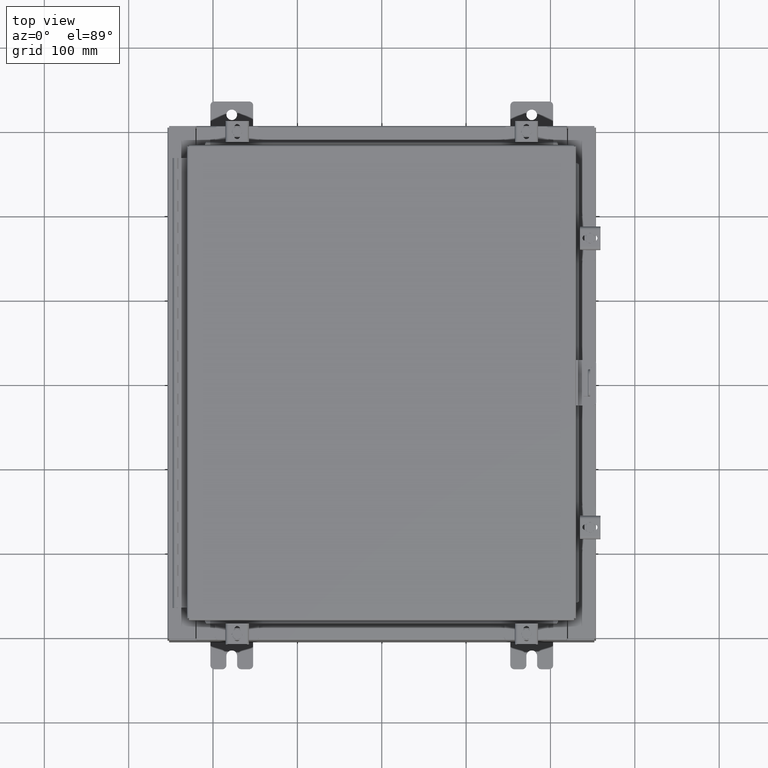
[diagram: clean part render]
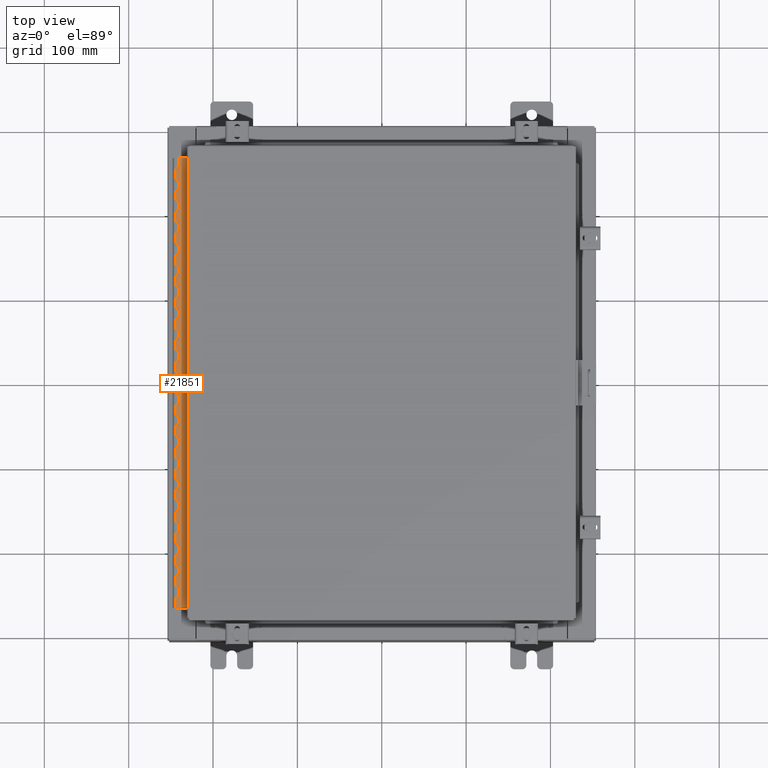
[diagram: same view with one face highlighted and labeled with its STEP entity id]
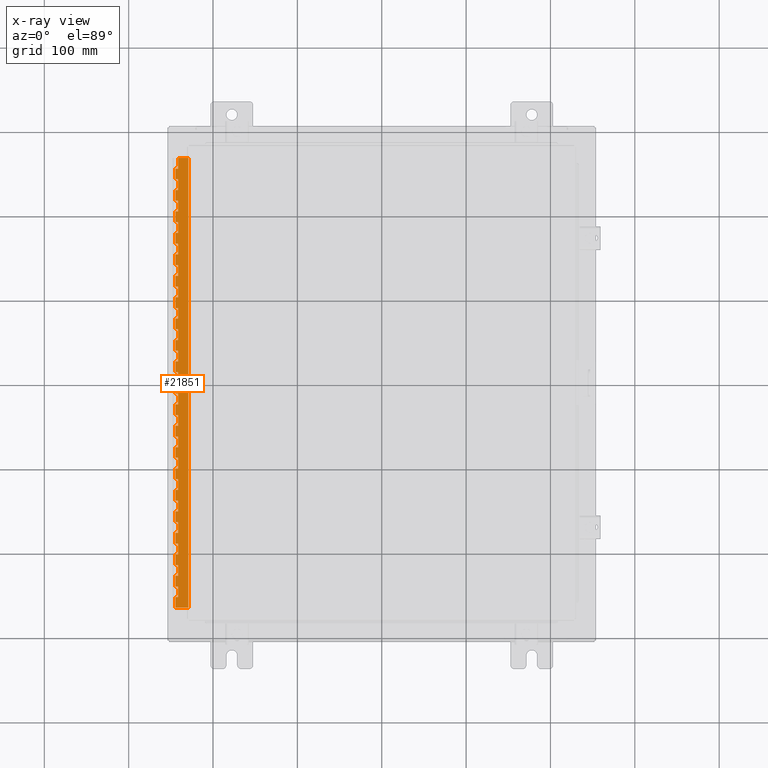
[diagram: x-ray of the same camera — body ghosted, the highlighted face saturated]
A machine part, top view. The second image highlights one B-rep face of the part: STEP entity #21851.
The next image is the same camera in x-ray: the body ghosted, the highlighted face saturated — about 0% of this face is hidden behind the body in this view.
In plain terms, the highlighted planar face has unit normal (-0, -0, 1).
Its self-contained STEP definition (entity closure, byte-faithful):
#10 = DIRECTION ( 'NONE',  ( 0.0000000000000000000, -0.0000000000000000000, -1.000000000000000000 ) ) ;
#110 = EDGE_LOOP ( 'NONE', ( #7374, #1227, #17751, #26213, #26139, #27694, #26069, #1134, #31613, #27124, #5864, #29014, #32197, #27745, #9833, #11457, #7352, #14745, #22190, #7203, #8964, #26904, #8284, #20350, #24306, #19693, #28124, #31014, #13934, #1066, #15916, #15917, #14273, #10133, #2960, #21213, #27392, #32095, #26765, #1829, #12618, #974, #14002, #23756, #30803, #26412, #29730, #24157, #28252, #1879, #6610, #32201, #8877, #13783, #570, #26147, #30787, #4504, #20109, #30104, #16271, #8625, #16395, #1882, #19258, #9254, #14951, #7604, #19823, #5283, #10772, #492, #5381, #12313, #15677, #4214, #22268, #32173, #17090, #22784, #27208, #228, #18981, #30369, #25976, #11629 ) ) ;
#144 = VERTEX_POINT ( 'NONE', #22469 ) ;
#167 = EDGE_CURVE ( 'NONE', #3867, #9009, #17802, .T. ) ;
#197 = VERTEX_POINT ( 'NONE', #25314 ) ;
#220 = EDGE_CURVE ( 'NONE', #9017, #28110, #28810, .T. ) ;
#228 = ORIENTED_EDGE ( 'NONE', *, *, #17876, .F. ) ;
#319 = CARTESIAN_POINT ( 'NONE',  ( -0.6869999999999973900, 0.8004999999999995500, -1.499999999999999800 ) ) ;
#446 = CARTESIAN_POINT ( 'NONE',  ( -0.6869999999999982800, 0.5504999999999997700, -15.50000000000000000 ) ) ;
#492 = ORIENTED_EDGE ( 'NONE', *, *, #26580, .F. ) ;
#498 = CARTESIAN_POINT ( 'NONE',  ( -0.6869999999999982800, 0.5504999999999997700, -20.50000000000000400 ) ) ;
#567 = DIRECTION ( 'NONE',  ( 0.0000000000000000000, -0.0000000000000000000, -1.000000000000000000 ) ) ;
#570 = ORIENTED_EDGE ( 'NONE', *, *, #1113, .F. ) ;
#618 = VECTOR ( 'NONE', #21244, 39.37007874015748100 ) ;
#786 = EDGE_CURVE ( 'NONE', #2374, #25137, #7176, .T. ) ;
#793 = EDGE_CURVE ( 'NONE', #18386, #22180, #6392, .T. ) ;
#811 = VERTEX_POINT ( 'NONE', #22641 ) ;
#840 = LINE ( 'NONE', #8329, #20042 ) ;
#923 = LINE ( 'NONE', #22798, #26032 ) ;
#925 = CARTESIAN_POINT ( 'NONE',  ( -0.6869999999999978300, 0.6754999999999996600, -18.50000000000000000 ) ) ;
#940 = LINE ( 'NONE', #4158, #6814 ) ;
#974 = ORIENTED_EDGE ( 'NONE', *, *, #9707, .F. ) ;
#1066 = ORIENTED_EDGE ( 'NONE', *, *, #20904, .F. ) ;
#1099 = CARTESIAN_POINT ( 'NONE',  ( -0.6869999999999978300, 0.6754999999999996600, -12.49999999999999800 ) ) ;
#1113 = EDGE_CURVE ( 'NONE', #13730, #9017, #30310, .T. ) ;
#1127 = CARTESIAN_POINT ( 'NONE',  ( -0.6869999999999973900, 0.8004999999999995500, -17.50000000000000000 ) ) ;
#1134 = ORIENTED_EDGE ( 'NONE', *, *, #22393, .F. ) ;
#1172 = VECTOR ( 'NONE', #4315, 39.37007874015748100 ) ;
#1227 = ORIENTED_EDGE ( 'NONE', *, *, #25290, .T. ) ;
#1246 = CARTESIAN_POINT ( 'NONE',  ( -0.6869999999999982800, 0.5504999999999997700, -16.00000000000000000 ) ) ;
#1334 = DIRECTION ( 'NONE',  ( 3.389037039080723100E-015, 1.000000000000000000, -0.0000000000000000000 ) ) ;
#1380 = CARTESIAN_POINT ( 'NONE',  ( -0.6869999999999978300, 0.6754999999999996600, -5.500000000000000000 ) ) ;
#1560 = VERTEX_POINT ( 'NONE', #14579 ) ;
#1594 = EDGE_CURVE ( 'NONE', #27441, #811, #19279, .T. ) ;
#1647 = CARTESIAN_POINT ( 'NONE',  ( -0.6869999999999978300, 0.6754999999999996600, -16.00000000000000000 ) ) ;
#1654 = EDGE_CURVE ( 'NONE', #18799, #26732, #10270, .T. ) ;
#1657 = VECTOR ( 'NONE', #7236, 39.37007874015748100 ) ;
#1748 = VECTOR ( 'NONE', #8925, 39.37007874015748100 ) ;
#1829 = ORIENTED_EDGE ( 'NONE', *, *, #31227, .F. ) ;
#1831 = EDGE_CURVE ( 'NONE', #197, #21979, #4750, .T. ) ;
#1879 = ORIENTED_EDGE ( 'NONE', *, *, #32073, .F. ) ;
#1882 = ORIENTED_EDGE ( 'NONE', *, *, #15146, .F. ) ;
#1956 = VERTEX_POINT ( 'NONE', #31430 ) ;
#2018 = CARTESIAN_POINT ( 'NONE',  ( -0.6869999999999978300, 0.6754999999999996600, -2.500000000000000000 ) ) ;
#2094 = CARTESIAN_POINT ( 'NONE',  ( -0.6870000000000022800, -0.6245000000000003900, -21.00000000000000000 ) ) ;
#2153 = CARTESIAN_POINT ( 'NONE',  ( -0.6869999999999978300, 0.6754999999999996600, -9.000000000000000000 ) ) ;
#2205 = VECTOR ( 'NONE', #14014, 39.37007874015748100 ) ;
#2240 = DIRECTION ( 'NONE',  ( 0.0000000000000000000, 0.0000000000000000000, 1.000000000000000000 ) ) ;
#2264 = LINE ( 'NONE', #6340, #21494 ) ;
#2305 = EDGE_CURVE ( 'NONE', #13417, #6780, #18054, .T. ) ;
#2374 = VERTEX_POINT ( 'NONE', #10586 ) ;
#2448 = VECTOR ( 'NONE', #21318, 39.37007874015748100 ) ;
#2581 = DIRECTION ( 'NONE',  ( 3.389037039080723100E-015, 1.000000000000000000, -0.0000000000000000000 ) ) ;
#2635 = VECTOR ( 'NONE', #28183, 39.37007874015748100 ) ;
#2651 = EDGE_CURVE ( 'NONE', #30910, #10146, #16090, .T. ) ;
#2700 = EDGE_CURVE ( 'NONE', #21152, #13354, #9402, .T. ) ;
#2704 = DIRECTION ( 'NONE',  ( 3.389037039080723100E-015, 1.000000000000000000, -0.0000000000000000000 ) ) ;
#2791 = CARTESIAN_POINT ( 'NONE',  ( -0.6869999999999978300, 0.6754999999999996600, -20.50000000000000400 ) ) ;
#2856 = EDGE_CURVE ( 'NONE', #30973, #27033, #3907, .T. ) ;
#2960 = ORIENTED_EDGE ( 'NONE', *, *, #24433, .F. ) ;
#2963 = VECTOR ( 'NONE', #4521, 39.37007874015748100 ) ;
#3065 = VERTEX_POINT ( 'NONE', #2791 ) ;
#3114 = VECTOR ( 'NONE', #24909, 39.37007874015748100 ) ;
#3140 = AXIS2_PLACEMENT_3D ( 'NONE', #2094, #19626, #4615 ) ;
#3284 = DIRECTION ( 'NONE',  ( 3.389037039080723100E-015, 1.000000000000000000, -0.0000000000000000000 ) ) ;
#3310 = CARTESIAN_POINT ( 'NONE',  ( -0.6869999999999978300, 0.6754999999999996600, -9.500000000000000000 ) ) ;
#3311 = DIRECTION ( 'NONE',  ( 0.0000000000000000000, -0.0000000000000000000, -1.000000000000000000 ) ) ;
#3412 = DIRECTION ( 'NONE',  ( 0.0000000000000000000, 0.0000000000000000000, 1.000000000000000000 ) ) ;
#3493 = DIRECTION ( 'NONE',  ( -3.389037039080723100E-015, -1.000000000000000000, 0.0000000000000000000 ) ) ;
#3623 = VECTOR ( 'NONE', #15088, 39.37007874015748100 ) ;
#3766 = EDGE_CURVE ( 'NONE', #31857, #27600, #13094, .T. ) ;
#3774 = CARTESIAN_POINT ( 'NONE',  ( -0.6869999999999978300, 0.6754999999999996600, -4.000000000000000000 ) ) ;
#3793 = VECTOR ( 'NONE', #13679, 39.37007874015748100 ) ;
#3819 = EDGE_CURVE ( 'NONE', #20007, #26262, #29970, .T. ) ;
#3846 = VERTEX_POINT ( 'NONE', #13820 ) ;
#3867 = VERTEX_POINT ( 'NONE', #3947 ) ;
#3883 = LINE ( 'NONE', #24571, #15646 ) ;
#3889 = VERTEX_POINT ( 'NONE', #6465 ) ;
#3907 = LINE ( 'NONE', #9989, #29804 ) ;
#3923 = CARTESIAN_POINT ( 'NONE',  ( -0.6869999999999973900, 0.8004999999999995500, -5.500000000000000000 ) ) ;
#3947 = CARTESIAN_POINT ( 'NONE',  ( -0.6869999999999978300, 0.6754999999999996600, -11.50000000000000000 ) ) ;
#3948 = EDGE_CURVE ( 'NONE', #14019, #5814, #940, .T. ) ;
#3990 = CARTESIAN_POINT ( 'NONE',  ( -0.6869999999999978300, 0.6754999999999996600, -6.000000000000000900 ) ) ;
#4020 = CARTESIAN_POINT ( 'NONE',  ( -0.6869999999999978300, 0.6754999999999996600, -8.000000000000000000 ) ) ;
#4042 = CARTESIAN_POINT ( 'NONE',  ( -0.6869999999999982800, 0.5504999999999997700, -11.00000000000000000 ) ) ;
#4117 = LINE ( 'NONE', #24265, #10793 ) ;
#4158 = CARTESIAN_POINT ( 'NONE',  ( -0.6869999999999978300, 0.6754999999999996600, -21.00000000000000000 ) ) ;
#4204 = DIRECTION ( 'NONE',  ( 0.0000000000000000000, 0.0000000000000000000, 1.000000000000000000 ) ) ;
#4214 = ORIENTED_EDGE ( 'NONE', *, *, #7300, .F. ) ;
#4236 = EDGE_CURVE ( 'NONE', #19250, #20865, #17375, .T. ) ;
#4315 = DIRECTION ( 'NONE',  ( -3.389037039080723100E-015, -1.000000000000000000, 0.0000000000000000000 ) ) ;
#4362 = VERTEX_POINT ( 'NONE', #23327 ) ;
#4404 = LINE ( 'NONE', #12561, #3623 ) ;
#4412 = VECTOR ( 'NONE', #28784, 39.37007874015748100 ) ;
#4472 = VERTEX_POINT ( 'NONE', #925 ) ;
#4482 = VECTOR ( 'NONE', #8195, 39.37007874015748100 ) ;
#4504 = ORIENTED_EDGE ( 'NONE', *, *, #25662, .F. ) ;
#4521 = DIRECTION ( 'NONE',  ( 0.0000000000000000000, 0.0000000000000000000, 1.000000000000000000 ) ) ;
#4561 = CARTESIAN_POINT ( 'NONE',  ( -0.6869999999999982800, 0.5504999999999997700, -15.50000000000000000 ) ) ;
#4572 = LINE ( 'NONE', #23780, #3793 ) ;
#4615 = DIRECTION ( 'NONE',  ( 3.369016658928398200E-015, 1.000000000000000000, 0.0000000000000000000 ) ) ;
#4645 = VERTEX_POINT ( 'NONE', #14174 ) ;
#4711 = CARTESIAN_POINT ( 'NONE',  ( -0.6869999999999982800, 0.5504999999999997700, -2.000000000000000000 ) ) ;
#4750 = LINE ( 'NONE', #21022, #17300 ) ;
#4814 = EDGE_CURVE ( 'NONE', #4472, #13671, #9107, .T. ) ;
#4953 = EDGE_CURVE ( 'NONE', #8978, #6625, #11061, .T. ) ;
#4982 = CARTESIAN_POINT ( 'NONE',  ( -0.6869999999999982800, 0.5504999999999997700, -3.500000000000000000 ) ) ;
#5059 = CARTESIAN_POINT ( 'NONE',  ( -0.6869999999999982800, 0.5504999999999997700, -6.499999999999999100 ) ) ;
#5248 = CARTESIAN_POINT ( 'NONE',  ( -0.6869999999999973900, 0.8004999999999995500, -8.000000000000000000 ) ) ;
#5283 = ORIENTED_EDGE ( 'NONE', *, *, #12782, .F. ) ;
#5284 = CARTESIAN_POINT ( 'NONE',  ( -0.6869999999999978300, 0.6754999999999996600, -19.50000000000000000 ) ) ;
#5381 = ORIENTED_EDGE ( 'NONE', *, *, #26248, .T. ) ;
#5417 = VERTEX_POINT ( 'NONE', #2153 ) ;
#5512 = DIRECTION ( 'NONE',  ( 0.0000000000000000000, 0.0000000000000000000, 1.000000000000000000 ) ) ;
#5541 = VECTOR ( 'NONE', #567, 39.37007874015748100 ) ;
#5565 = CARTESIAN_POINT ( 'NONE',  ( -0.6869999999999982800, 0.5504999999999997700, -6.499999999999999100 ) ) ;
#5580 = CARTESIAN_POINT ( 'NONE',  ( -0.6869999999999978300, 0.6754999999999996600, -14.00000000000000000 ) ) ;
#5613 = DIRECTION ( 'NONE',  ( 0.0000000000000000000, -0.0000000000000000000, -1.000000000000000000 ) ) ;
#5814 = VERTEX_POINT ( 'NONE', #13117 ) ;
#5864 = ORIENTED_EDGE ( 'NONE', *, *, #31521, .F. ) ;
#5879 = LINE ( 'NONE', #17801, #18415 ) ;
#5943 = CARTESIAN_POINT ( 'NONE',  ( -0.6869999999999978300, 0.6754999999999996600, -21.00000000000000000 ) ) ;
#5997 = DIRECTION ( 'NONE',  ( 0.0000000000000000000, 0.0000000000000000000, 1.000000000000000000 ) ) ;
#6047 = VERTEX_POINT ( 'NONE', #1380 ) ;
#6074 = EDGE_CURVE ( 'NONE', #19250, #18003, #20397, .T. ) ;
#6099 = LINE ( 'NONE', #9941, #31958 ) ;
#6121 = VECTOR ( 'NONE', #21187, 39.37007874015748100 ) ;
#6221 = CARTESIAN_POINT ( 'NONE',  ( -0.6869999999999978300, 0.6754999999999996600, -21.00000000000000000 ) ) ;
#6254 = CARTESIAN_POINT ( 'NONE',  ( -0.6869999999999982800, 0.5504999999999997700, -1.499999999999999800 ) ) ;
#6340 = CARTESIAN_POINT ( 'NONE',  ( -0.6869999999999973900, 0.8004999999999995500, -19.00000000000000000 ) ) ;
#6387 = VECTOR ( 'NONE', #13615, 39.37007874015748100 ) ;
#6392 = LINE ( 'NONE', #17596, #32261 ) ;
#6406 = EDGE_CURVE ( 'NONE', #20007, #26732, #5879, .T. ) ;
#6465 = CARTESIAN_POINT ( 'NONE',  ( -0.6869999999999982800, 0.5504999999999997700, -14.00000000000000000 ) ) ;
#6469 = VECTOR ( 'NONE', #18260, 39.37007874015748100 ) ;
#6524 = LINE ( 'NONE', #24645, #25752 ) ;
#6610 = ORIENTED_EDGE ( 'NONE', *, *, #8837, .F. ) ;
#6625 = VERTEX_POINT ( 'NONE', #1246 ) ;
#6659 = CARTESIAN_POINT ( 'NONE',  ( -0.6869999999999982800, 0.5504999999999997700, -12.49999999999999800 ) ) ;
#6660 = VERTEX_POINT ( 'NONE', #21507 ) ;
#6705 = CARTESIAN_POINT ( 'NONE',  ( -0.6869999999999982800, 0.5504999999999997700, -0.5000000000000000000 ) ) ;
#6757 = DIRECTION ( 'NONE',  ( 0.0000000000000000000, -0.0000000000000000000, -1.000000000000000000 ) ) ;
#6780 = VERTEX_POINT ( 'NONE', #31898 ) ;
#6814 = VECTOR ( 'NONE', #31657, 39.37007874015748100 ) ;
#6936 = CARTESIAN_POINT ( 'NONE',  ( -0.6869999999999978300, 0.6754999999999996600, -14.49999999999999800 ) ) ;
#6957 = VERTEX_POINT ( 'NONE', #20175 ) ;
#7032 = PLANE ( 'NONE',  #3140 ) ;
#7113 = DIRECTION ( 'NONE',  ( 0.0000000000000000000, 0.0000000000000000000, 1.000000000000000000 ) ) ;
#7176 = LINE ( 'NONE', #4982, #27182 ) ;
#7203 = ORIENTED_EDGE ( 'NONE', *, *, #14576, .F. ) ;
#7236 = DIRECTION ( 'NONE',  ( -3.389037039080723100E-015, -1.000000000000000000, 0.0000000000000000000 ) ) ;
#7300 = EDGE_CURVE ( 'NONE', #30910, #31399, #18356, .T. ) ;
#7352 = ORIENTED_EDGE ( 'NONE', *, *, #22013, .T. ) ;
#7374 = ORIENTED_EDGE ( 'NONE', *, *, #15329, .F. ) ;
#7468 = VERTEX_POINT ( 'NONE', #11092 ) ;
#7469 = CARTESIAN_POINT ( 'NONE',  ( -0.6869999999999978300, 0.6754999999999996600, -2.999999999999999600 ) ) ;
#7549 = CARTESIAN_POINT ( 'NONE',  ( -0.6869999999999978300, 0.6754999999999996600, -21.00000000000000000 ) ) ;
#7591 = LINE ( 'NONE', #11989, #14278 ) ;
#7604 = ORIENTED_EDGE ( 'NONE', *, *, #2700, .F. ) ;
#7636 = VERTEX_POINT ( 'NONE', #17094 ) ;
#7645 = CARTESIAN_POINT ( 'NONE',  ( -0.6869999999999978300, 0.6754999999999996600, -7.000000000000000000 ) ) ;
#7672 = CARTESIAN_POINT ( 'NONE',  ( -0.6869999999999978300, 0.6754999999999996600, -21.00000000000000000 ) ) ;
#7686 = VECTOR ( 'NONE', #20371, 39.37007874015748100 ) ;
#7764 = DIRECTION ( 'NONE',  ( 0.0000000000000000000, -0.0000000000000000000, -1.000000000000000000 ) ) ;
#7775 = EDGE_CURVE ( 'NONE', #20429, #16511, #12431, .T. ) ;
#7809 = CARTESIAN_POINT ( 'NONE',  ( -0.6869999999999982800, 0.5504999999999997700, -4.500000000000000000 ) ) ;
#7869 = DIRECTION ( 'NONE',  ( 3.389037039080723100E-015, 1.000000000000000000, -0.0000000000000000000 ) ) ;
#8027 = CARTESIAN_POINT ( 'NONE',  ( -0.6869999999999978300, 0.6754999999999996600, -15.50000000000000000 ) ) ;
#8029 = DIRECTION ( 'NONE',  ( 3.369016658928398200E-015, 1.000000000000000000, 0.0000000000000000000 ) ) ;
#8096 = CARTESIAN_POINT ( 'NONE',  ( -0.6869999999999973900, 0.8004999999999995500, -5.000000000000000000 ) ) ;
#8134 = LINE ( 'NONE', #9967, #27351 ) ;
#8194 = VERTEX_POINT ( 'NONE', #29674 ) ;
#8195 = DIRECTION ( 'NONE',  ( 3.389037039080723100E-015, 1.000000000000000000, -0.0000000000000000000 ) ) ;
#8284 = ORIENTED_EDGE ( 'NONE', *, *, #4953, .F. ) ;
#8329 = CARTESIAN_POINT ( 'NONE',  ( -0.6869999999999973900, 0.8004999999999995500, -11.99999999999999800 ) ) ;
#8341 = LINE ( 'NONE', #14335, #27556 ) ;
#8381 = CARTESIAN_POINT ( 'NONE',  ( -0.6869999999999973900, 0.8004999999999995500, -6.000000000000000900 ) ) ;
#8506 = EDGE_CURVE ( 'NONE', #13354, #16881, #8134, .T. ) ;
#8577 = VERTEX_POINT ( 'NONE', #17856 ) ;
#8598 = EDGE_CURVE ( 'NONE', #16511, #10146, #26578, .T. ) ;
#8625 = ORIENTED_EDGE ( 'NONE', *, *, #30997, .F. ) ;
#8642 = EDGE_CURVE ( 'NONE', #16881, #7636, #29313, .T. ) ;
#8706 = CARTESIAN_POINT ( 'NONE',  ( -0.6869999999999973900, 0.8004999999999995500, -10.00000000000000000 ) ) ;
#8837 = EDGE_CURVE ( 'NONE', #23144, #26671, #4572, .T. ) ;
#8877 = ORIENTED_EDGE ( 'NONE', *, *, #19977, .T. ) ;
#8882 = LINE ( 'NONE', #8961, #2205 ) ;
#8894 = EDGE_CURVE ( 'NONE', #3065, #14418, #8882, .T. ) ;
#8923 = VECTOR ( 'NONE', #17125, 39.37007874015748100 ) ;
#8925 = DIRECTION ( 'NONE',  ( 0.0000000000000000000, 0.0000000000000000000, 1.000000000000000000 ) ) ;
#8961 = CARTESIAN_POINT ( 'NONE',  ( -0.6869999999999978300, 0.6754999999999996600, -21.00000000000000000 ) ) ;
#8964 = ORIENTED_EDGE ( 'NONE', *, *, #3766, .T. ) ;
#8978 = VERTEX_POINT ( 'NONE', #4561 ) ;
#8984 = EDGE_CURVE ( 'NONE', #21152, #26844, #6524, .T. ) ;
#9009 = VERTEX_POINT ( 'NONE', #14766 ) ;
#9017 = VERTEX_POINT ( 'NONE', #24761 ) ;
#9107 = LINE ( 'NONE', #9763, #1657 ) ;
#9115 = LINE ( 'NONE', #8706, #2448 ) ;
#9237 = LINE ( 'NONE', #6659, #21791 ) ;
#9254 = ORIENTED_EDGE ( 'NONE', *, *, #8642, .F. ) ;
#9351 = CARTESIAN_POINT ( 'NONE',  ( -0.6869999999999973900, 0.8004999999999995500, -4.500000000000000000 ) ) ;
#9402 = LINE ( 'NONE', #9351, #1172 ) ;
#9496 = VECTOR ( 'NONE', #19504, 39.37007874015748100 ) ;
#9558 = CARTESIAN_POINT ( 'NONE',  ( -0.6869999999999982800, 0.5504999999999997700, -11.99999999999999800 ) ) ;
#9561 = DIRECTION ( 'NONE',  ( -3.389037039080723100E-015, -1.000000000000000000, 0.0000000000000000000 ) ) ;
#9669 = CARTESIAN_POINT ( 'NONE',  ( -0.6869999999999982800, 0.5504999999999997700, -7.000000000000000000 ) ) ;
#9707 = EDGE_CURVE ( 'NONE', #16851, #9009, #17849, .T. ) ;
#9763 = CARTESIAN_POINT ( 'NONE',  ( -0.6869999999999973900, 0.8004999999999995500, -18.50000000000000000 ) ) ;
#9812 = VECTOR ( 'NONE', #26848, 39.37007874015748100 ) ;
#9823 = CARTESIAN_POINT ( 'NONE',  ( -0.6869999999999982800, 0.5504999999999997700, -12.99999999999999800 ) ) ;
#9833 = ORIENTED_EDGE ( 'NONE', *, *, #22113, .F. ) ;
#9868 = CARTESIAN_POINT ( 'NONE',  ( -0.6869999999999982800, 0.5504999999999997700, -5.500000000000000000 ) ) ;
#9886 = EDGE_CURVE ( 'NONE', #8577, #6957, #12251, .T. ) ;
#9941 = CARTESIAN_POINT ( 'NONE',  ( -0.6869999999999978300, 0.6754999999999996600, -21.00000000000000000 ) ) ;
#9967 = CARTESIAN_POINT ( 'NONE',  ( -0.6869999999999982800, 0.5504999999999997700, -4.500000000000000000 ) ) ;
#9989 = CARTESIAN_POINT ( 'NONE',  ( -0.6869999999999982800, 0.5504999999999997700, -11.50000000000000000 ) ) ;
#9993 = CARTESIAN_POINT ( 'NONE',  ( -0.6869999999999973900, 0.8004999999999995500, -11.00000000000000000 ) ) ;
#10002 = DIRECTION ( 'NONE',  ( 0.0000000000000000000, -0.0000000000000000000, -1.000000000000000000 ) ) ;
#10007 = VECTOR ( 'NONE', #5512, 39.37007874015748100 ) ;
#10068 = VERTEX_POINT ( 'NONE', #19194 ) ;
#10131 = VECTOR ( 'NONE', #30110, 39.37007874015748100 ) ;
#10133 = ORIENTED_EDGE ( 'NONE', *, *, #1654, .F. ) ;
#10146 = VERTEX_POINT ( 'NONE', #29517 ) ;
#10149 = VERTEX_POINT ( 'NONE', #31994 ) ;
#10185 = DIRECTION ( 'NONE',  ( 0.0000000000000000000, -0.0000000000000000000, -1.000000000000000000 ) ) ;
#10216 = DIRECTION ( 'NONE',  ( 0.0000000000000000000, 0.0000000000000000000, 1.000000000000000000 ) ) ;
#10224 = CARTESIAN_POINT ( 'NONE',  ( -0.6869999999999978300, 0.6754999999999996600, -7.499999999999999100 ) ) ;
#10259 = LINE ( 'NONE', #24825, #29487 ) ;
#10270 = LINE ( 'NONE', #30262, #16154 ) ;
#10315 = LINE ( 'NONE', #15205, #22871 ) ;
#10376 = CARTESIAN_POINT ( 'NONE',  ( -0.6869999999999982800, 0.5504999999999997700, -16.50000000000000000 ) ) ;
#10408 = DIRECTION ( 'NONE',  ( 3.389037039080723100E-015, 1.000000000000000000, -0.0000000000000000000 ) ) ;
#10586 = CARTESIAN_POINT ( 'NONE',  ( -0.6869999999999982800, 0.5504999999999997700, -3.500000000000000000 ) ) ;
#10611 = DIRECTION ( 'NONE',  ( 3.389037039080723100E-015, 1.000000000000000000, -0.0000000000000000000 ) ) ;
#10657 = CARTESIAN_POINT ( 'NONE',  ( -0.6869999999999978300, 0.6754999999999996600, -8.500000000000000000 ) ) ;
#10749 = VECTOR ( 'NONE', #26714, 39.37007874015748100 ) ;
#10772 = ORIENTED_EDGE ( 'NONE', *, *, #786, .F. ) ;
#10793 = VECTOR ( 'NONE', #26771, 39.37007874015748100 ) ;
#10933 = VECTOR ( 'NONE', #30356, 39.37007874015748100 ) ;
#11061 = LINE ( 'NONE', #446, #23621 ) ;
#11092 = CARTESIAN_POINT ( 'NONE',  ( -0.6869999999999982800, 0.5504999999999997700, -2.999999999999999600 ) ) ;
#11213 = CARTESIAN_POINT ( 'NONE',  ( -0.6869999999999982800, 0.5504999999999997700, -7.499999999999999100 ) ) ;
#11258 = CARTESIAN_POINT ( 'NONE',  ( -0.6869999999999982800, 0.5504999999999997700, -13.50000000000000000 ) ) ;
#11366 = VERTEX_POINT ( 'NONE', #9669 ) ;
#11368 = DIRECTION ( 'NONE',  ( 3.389037039080723100E-015, 1.000000000000000000, -0.0000000000000000000 ) ) ;
#11423 = CARTESIAN_POINT ( 'NONE',  ( -0.6869999999999973900, 0.8004999999999995500, -15.50000000000000000 ) ) ;
#11457 = ORIENTED_EDGE ( 'NONE', *, *, #19863, .F. ) ;
#11462 = DIRECTION ( 'NONE',  ( -3.389037039080723100E-015, -1.000000000000000000, 0.0000000000000000000 ) ) ;
#11490 = VECTOR ( 'NONE', #12792, 39.37007874015748100 ) ;
#11560 = LINE ( 'NONE', #20996, #30785 ) ;
#11589 = CARTESIAN_POINT ( 'NONE',  ( -0.6869999999999982800, 0.5504999999999997700, -5.000000000000000000 ) ) ;
#11629 = ORIENTED_EDGE ( 'NONE', *, *, #12604, .F. ) ;
#11841 = CARTESIAN_POINT ( 'NONE',  ( -0.6869999999999998300, 0.07549999999999991400, -21.00000000000000000 ) ) ;
#11920 = EDGE_CURVE ( 'NONE', #17661, #1956, #23923, .T. ) ;
#11954 = EDGE_CURVE ( 'NONE', #6957, #14418, #15662, .T. ) ;
#11960 = VECTOR ( 'NONE', #27553, 39.37007874015748100 ) ;
#11987 = CARTESIAN_POINT ( 'NONE',  ( -0.6869999999999982800, 0.5504999999999997700, -11.50000000000000000 ) ) ;
#11989 = CARTESIAN_POINT ( 'NONE',  ( -0.6869999999999973900, 0.8004999999999995500, -8.500000000000000000 ) ) ;
#12028 = LINE ( 'NONE', #27557, #24619 ) ;
#12044 = DIRECTION ( 'NONE',  ( 0.0000000000000000000, 0.0000000000000000000, 1.000000000000000000 ) ) ;
#12060 = VECTOR ( 'NONE', #25717, 39.37007874015748100 ) ;
#12113 = DIRECTION ( 'NONE',  ( 0.0000000000000000000, 0.0000000000000000000, 1.000000000000000000 ) ) ;
#12179 = CARTESIAN_POINT ( 'NONE',  ( -0.6869999999999978300, 0.6754999999999996600, -13.50000000000000000 ) ) ;
#12251 = LINE ( 'NONE', #28658, #6387 ) ;
#12313 = ORIENTED_EDGE ( 'NONE', *, *, #22734, .F. ) ;
#12431 = LINE ( 'NONE', #22801, #25784 ) ;
#12444 = CARTESIAN_POINT ( 'NONE',  ( -0.6869999999999973900, 0.8004999999999995500, -0.5000000000000000000 ) ) ;
#12561 = CARTESIAN_POINT ( 'NONE',  ( -0.6869999999999973900, 0.8004999999999995500, -3.500000000000000000 ) ) ;
#12604 = EDGE_CURVE ( 'NONE', #29050, #14801, #16804, .T. ) ;
#12618 = ORIENTED_EDGE ( 'NONE', *, *, #167, .T. ) ;
#12693 = EDGE_CURVE ( 'NONE', #26644, #18386, #21102, .T. ) ;
#12762 = VECTOR ( 'NONE', #19558, 39.37007874015748100 ) ;
#12782 = EDGE_CURVE ( 'NONE', #25137, #26844, #32059, .T. ) ;
#12792 = DIRECTION ( 'NONE',  ( 0.0000000000000000000, 0.0000000000000000000, 1.000000000000000000 ) ) ;
#12809 = CARTESIAN_POINT ( 'NONE',  ( -0.6869999999999982800, 0.5504999999999997700, -9.500000000000000000 ) ) ;
#12941 = DIRECTION ( 'NONE',  ( 0.0000000000000000000, -0.0000000000000000000, -1.000000000000000000 ) ) ;
#13021 = CARTESIAN_POINT ( 'NONE',  ( -0.6869999999999973900, 0.8004999999999995500, -9.000000000000000000 ) ) ;
#13043 = LINE ( 'NONE', #23145, #18140 ) ;
#13051 = LINE ( 'NONE', #6221, #18925 ) ;
#13094 = LINE ( 'NONE', #5943, #25659 ) ;
#13117 = CARTESIAN_POINT ( 'NONE',  ( -0.6869999999999978300, 0.6754999999999996600, -1.000000000000000000 ) ) ;
#13262 = EDGE_CURVE ( 'NONE', #29336, #30113, #12028, .T. ) ;
#13354 = VERTEX_POINT ( 'NONE', #7809 ) ;
#13417 = VERTEX_POINT ( 'NONE', #8027 ) ;
#13419 = DIRECTION ( 'NONE',  ( 3.389037039080723100E-015, 1.000000000000000000, -0.0000000000000000000 ) ) ;
#13441 = CARTESIAN_POINT ( 'NONE',  ( -0.6869999999999973900, 0.8004999999999995500, -7.499999999999999100 ) ) ;
#13532 = LINE ( 'NONE', #27290, #19394 ) ;
#13615 = DIRECTION ( 'NONE',  ( 0.0000000000000000000, -0.0000000000000000000, -1.000000000000000000 ) ) ;
#13671 = VERTEX_POINT ( 'NONE', #16578 ) ;
#13679 = DIRECTION ( 'NONE',  ( 0.0000000000000000000, -0.0000000000000000000, -1.000000000000000000 ) ) ;
#13705 = DIRECTION ( 'NONE',  ( 3.389037039080723100E-015, 1.000000000000000000, -0.0000000000000000000 ) ) ;
#13729 = VECTOR ( 'NONE', #11462, 39.37007874015748100 ) ;
#13730 = VERTEX_POINT ( 'NONE', #16793 ) ;
#13783 = ORIENTED_EDGE ( 'NONE', *, *, #220, .F. ) ;
#13820 = CARTESIAN_POINT ( 'NONE',  ( -0.6869999999999982800, 0.5504999999999997700, -17.99999999999999600 ) ) ;
#13934 = ORIENTED_EDGE ( 'NONE', *, *, #4236, .T. ) ;
#13961 = LINE ( 'NONE', #23771, #618 ) ;
#14002 = ORIENTED_EDGE ( 'NONE', *, *, #26015, .F. ) ;
#14014 = DIRECTION ( 'NONE',  ( 0.0000000000000000000, 0.0000000000000000000, 1.000000000000000000 ) ) ;
#14019 = VERTEX_POINT ( 'NONE', #25543 ) ;
#14090 = EDGE_CURVE ( 'NONE', #6625, #27600, #23382, .T. ) ;
#14174 = CARTESIAN_POINT ( 'NONE',  ( -0.6869999999999978300, 0.6754999999999996600, -10.00000000000000000 ) ) ;
#14273 = ORIENTED_EDGE ( 'NONE', *, *, #6406, .T. ) ;
#14278 = VECTOR ( 'NONE', #29567, 39.37007874015748100 ) ;
#14302 = LINE ( 'NONE', #3923, #15080 ) ;
#14335 = CARTESIAN_POINT ( 'NONE',  ( -0.6869999999999973900, 0.8004999999999995500, -10.50000000000000000 ) ) ;
#14418 = VERTEX_POINT ( 'NONE', #26117 ) ;
#14431 = CARTESIAN_POINT ( 'NONE',  ( -0.6869999999999998300, 0.07549999999999991400, 0.0000000000000000000 ) ) ;
#14442 = VECTOR ( 'NONE', #25408, 39.37007874015748100 ) ;
#14554 = VERTEX_POINT ( 'NONE', #6705 ) ;
#14576 = EDGE_CURVE ( 'NONE', #31857, #26644, #4117, .T. ) ;
#14579 = CARTESIAN_POINT ( 'NONE',  ( -0.6869999999999982800, 0.5504999999999997700, -9.500000000000000000 ) ) ;
#14620 = CARTESIAN_POINT ( 'NONE',  ( -0.6869999999999973900, 0.8004999999999995500, -11.50000000000000000 ) ) ;
#14715 = EDGE_CURVE ( 'NONE', #27331, #1560, #13532, .T. ) ;
#14745 = ORIENTED_EDGE ( 'NONE', *, *, #793, .F. ) ;
#14766 = CARTESIAN_POINT ( 'NONE',  ( -0.6869999999999978300, 0.6754999999999996600, -11.00000000000000000 ) ) ;
#14801 = VERTEX_POINT ( 'NONE', #20052 ) ;
#14802 = DIRECTION ( 'NONE',  ( -3.389037039080723100E-015, -1.000000000000000000, 0.0000000000000000000 ) ) ;
#14948 = LINE ( 'NONE', #24312, #22401 ) ;
#14951 = ORIENTED_EDGE ( 'NONE', *, *, #8506, .F. ) ;
#14989 = DIRECTION ( 'NONE',  ( -3.389037039080723100E-015, -1.000000000000000000, 0.0000000000000000000 ) ) ;
#15080 = VECTOR ( 'NONE', #29039, 39.37007874015748100 ) ;
#15088 = DIRECTION ( 'NONE',  ( -3.389037039080723100E-015, -1.000000000000000000, 0.0000000000000000000 ) ) ;
#15102 = LINE ( 'NONE', #29006, #1748 ) ;
#15146 = EDGE_CURVE ( 'NONE', #6047, #17661, #14302, .T. ) ;
#15205 = CARTESIAN_POINT ( 'NONE',  ( -0.6869999999999973900, 0.8004999999999995500, -2.999999999999999600 ) ) ;
#15329 = EDGE_CURVE ( 'NONE', #16369, #29050, #30365, .T. ) ;
#15374 = EDGE_CURVE ( 'NONE', #23014, #14554, #15452, .T. ) ;
#15407 = LINE ( 'NONE', #7672, #27948 ) ;
#15412 = DIRECTION ( 'NONE',  ( 0.0000000000000000000, 0.0000000000000000000, 1.000000000000000000 ) ) ;
#15448 = VECTOR ( 'NONE', #7869, 39.37007874015748100 ) ;
#15452 = LINE ( 'NONE', #12444, #27995 ) ;
#15488 = CARTESIAN_POINT ( 'NONE',  ( -0.6870000000000022800, -0.6245000000000003900, -21.00000000000000000 ) ) ;
#15493 = CARTESIAN_POINT ( 'NONE',  ( -0.6869999999999978300, 0.6754999999999996600, -3.500000000000000000 ) ) ;
#15579 = CARTESIAN_POINT ( 'NONE',  ( -0.6869999999999982800, 0.5504999999999997700, -2.500000000000000000 ) ) ;
#15646 = VECTOR ( 'NONE', #12044, 39.37007874015748100 ) ;
#15662 = LINE ( 'NONE', #22485, #28210 ) ;
#15677 = ORIENTED_EDGE ( 'NONE', *, *, #27269, .F. ) ;
#15916 = ORIENTED_EDGE ( 'NONE', *, *, #27097, .F. ) ;
#15917 = ORIENTED_EDGE ( 'NONE', *, *, #3819, .F. ) ;
#16039 = VERTEX_POINT ( 'NONE', #15493 ) ;
#16090 = LINE ( 'NONE', #24174, #21965 ) ;
#16154 = VECTOR ( 'NONE', #27826, 39.37007874015748100 ) ;
#16271 = ORIENTED_EDGE ( 'NONE', *, *, #24295, .T. ) ;
#16369 = VERTEX_POINT ( 'NONE', #11841 ) ;
#16388 = LINE ( 'NONE', #11423, #28948 ) ;
#16395 = ORIENTED_EDGE ( 'NONE', *, *, #11920, .F. ) ;
#16403 = EDGE_CURVE ( 'NONE', #3065, #29336, #27935, .T. ) ;
#16495 = LINE ( 'NONE', #24341, #9812 ) ;
#16506 = LINE ( 'NONE', #20335, #29841 ) ;
#16511 = VERTEX_POINT ( 'NONE', #4711 ) ;
#16578 = CARTESIAN_POINT ( 'NONE',  ( -0.6869999999999982800, 0.5504999999999997700, -18.50000000000000000 ) ) ;
#16633 = CARTESIAN_POINT ( 'NONE',  ( -0.6869999999999978300, 0.6754999999999996600, -4.500000000000000000 ) ) ;
#16708 = VECTOR ( 'NONE', #3284, 39.37007874015748100 ) ;
#16720 = EDGE_CURVE ( 'NONE', #27033, #811, #840, .T. ) ;
#16763 = CARTESIAN_POINT ( 'NONE',  ( -0.6869999999999973900, 0.8004999999999995500, -19.50000000000000000 ) ) ;
#16793 = CARTESIAN_POINT ( 'NONE',  ( -0.6869999999999982800, 0.5504999999999997700, -7.499999999999999100 ) ) ;
#16804 = LINE ( 'NONE', #20016, #10131 ) ;
#16816 = LINE ( 'NONE', #12809, #10933 ) ;
#16851 = VERTEX_POINT ( 'NONE', #4042 ) ;
#16881 = VERTEX_POINT ( 'NONE', #11589 ) ;
#16978 = CARTESIAN_POINT ( 'NONE',  ( -0.6869999999999982800, 0.5504999999999997700, -12.49999999999999800 ) ) ;
#17005 = CARTESIAN_POINT ( 'NONE',  ( -0.6869999999999973900, 0.8004999999999995500, -20.50000000000000400 ) ) ;
#17090 = ORIENTED_EDGE ( 'NONE', *, *, #7775, .F. ) ;
#17094 = CARTESIAN_POINT ( 'NONE',  ( -0.6869999999999978300, 0.6754999999999996600, -5.000000000000000000 ) ) ;
#17104 = EDGE_CURVE ( 'NONE', #27441, #28627, #16506, .T. ) ;
#17125 = DIRECTION ( 'NONE',  ( -3.389037039080723100E-015, -1.000000000000000000, 0.0000000000000000000 ) ) ;
#17168 = VERTEX_POINT ( 'NONE', #23187 ) ;
#17300 = VECTOR ( 'NONE', #3493, 39.37007874015748100 ) ;
#17375 = LINE ( 'NONE', #25309, #11490 ) ;
#17405 = VECTOR ( 'NONE', #28746, 39.37007874015748100 ) ;
#17408 = LINE ( 'NONE', #24203, #10749 ) ;
#17596 = CARTESIAN_POINT ( 'NONE',  ( -0.6869999999999973900, 0.8004999999999995500, -17.00000000000000000 ) ) ;
#17661 = VERTEX_POINT ( 'NONE', #20623 ) ;
#17751 = ORIENTED_EDGE ( 'NONE', *, *, #13262, .F. ) ;
#17777 = CARTESIAN_POINT ( 'NONE',  ( -0.6869999999999982800, 0.5504999999999997700, -2.500000000000000000 ) ) ;
#17801 = CARTESIAN_POINT ( 'NONE',  ( -0.6869999999999978300, 0.6754999999999996600, -21.00000000000000000 ) ) ;
#17802 = LINE ( 'NONE', #7549, #23702 ) ;
#17849 = LINE ( 'NONE', #9993, #11960 ) ;
#17856 = CARTESIAN_POINT ( 'NONE',  ( -0.6869999999999982800, 0.5504999999999997700, -19.50000000000000000 ) ) ;
#17876 = EDGE_CURVE ( 'NONE', #4362, #5814, #21150, .T. ) ;
#17913 = CARTESIAN_POINT ( 'NONE',  ( -0.6869999999999978300, 0.6754999999999996600, -21.00000000000000000 ) ) ;
#18003 = VERTEX_POINT ( 'NONE', #19186 ) ;
#18052 = EDGE_CURVE ( 'NONE', #23014, #14801, #3883, .T. ) ;
#18054 = LINE ( 'NONE', #17913, #23969 ) ;
#18140 = VECTOR ( 'NONE', #5613, 39.37007874015748100 ) ;
#18205 = VECTOR ( 'NONE', #8029, 39.37007874015748100 ) ;
#18255 = EDGE_CURVE ( 'NONE', #1560, #31740, #16816, .T. ) ;
#18260 = DIRECTION ( 'NONE',  ( 0.0000000000000000000, -0.0000000000000000000, -1.000000000000000000 ) ) ;
#18286 = CARTESIAN_POINT ( 'NONE',  ( -0.6869999999999982800, 0.5504999999999997700, -17.00000000000000000 ) ) ;
#18326 = VECTOR ( 'NONE', #10408, 39.37007874015748100 ) ;
#18356 = LINE ( 'NONE', #23050, #24266 ) ;
#18386 = VERTEX_POINT ( 'NONE', #18286 ) ;
#18403 = DIRECTION ( 'NONE',  ( 3.389037039080723100E-015, 1.000000000000000000, -0.0000000000000000000 ) ) ;
#18407 = EDGE_CURVE ( 'NONE', #4472, #21362, #26225, .T. ) ;
#18415 = VECTOR ( 'NONE', #25271, 39.37007874015748100 ) ;
#18546 = EDGE_CURVE ( 'NONE', #10149, #10068, #2264, .T. ) ;
#18742 = CARTESIAN_POINT ( 'NONE',  ( -0.6869999999999973900, 0.8004999999999995500, -7.000000000000000000 ) ) ;
#18745 = CARTESIAN_POINT ( 'NONE',  ( -0.6869999999999973900, 0.8004999999999995500, -13.50000000000000000 ) ) ;
#18799 = VERTEX_POINT ( 'NONE', #9823 ) ;
#18925 = VECTOR ( 'NONE', #26291, 39.37007874015748100 ) ;
#18952 = LINE ( 'NONE', #16763, #24864 ) ;
#18981 = ORIENTED_EDGE ( 'NONE', *, *, #28189, .F. ) ;
#19165 = VERTEX_POINT ( 'NONE', #29311 ) ;
#19186 = CARTESIAN_POINT ( 'NONE',  ( -0.6869999999999982800, 0.5504999999999997700, -14.49999999999999800 ) ) ;
#19194 = CARTESIAN_POINT ( 'NONE',  ( -0.6869999999999978300, 0.6754999999999996600, -19.00000000000000000 ) ) ;
#19248 = DIRECTION ( 'NONE',  ( 0.0000000000000000000, -0.0000000000000000000, -1.000000000000000000 ) ) ;
#19250 = VERTEX_POINT ( 'NONE', #6936 ) ;
#19258 = ORIENTED_EDGE ( 'NONE', *, *, #24524, .T. ) ;
#19279 = LINE ( 'NONE', #19596, #25191 ) ;
#19329 = CARTESIAN_POINT ( 'NONE',  ( -0.6869999999999982800, 0.5504999999999997700, -8.500000000000000000 ) ) ;
#19394 = VECTOR ( 'NONE', #14802, 39.37007874015748100 ) ;
#19417 = LINE ( 'NONE', #32047, #12762 ) ;
#19419 = VERTEX_POINT ( 'NONE', #10224 ) ;
#19504 = DIRECTION ( 'NONE',  ( -3.389037039080723100E-015, -1.000000000000000000, 0.0000000000000000000 ) ) ;
#19522 = CARTESIAN_POINT ( 'NONE',  ( -0.6869999999999978300, 0.6754999999999996600, -21.00000000000000000 ) ) ;
#19558 = DIRECTION ( 'NONE',  ( 3.389037039080723100E-015, 1.000000000000000000, -0.0000000000000000000 ) ) ;
#19596 = CARTESIAN_POINT ( 'NONE',  ( -0.6869999999999978300, 0.6754999999999996600, -21.00000000000000000 ) ) ;
#19626 = DIRECTION ( 'NONE',  ( 1.000000000000000000, -3.369016658928398200E-015, 0.0000000000000000000 ) ) ;
#19693 = ORIENTED_EDGE ( 'NONE', *, *, #32498, .F. ) ;
#19823 = ORIENTED_EDGE ( 'NONE', *, *, #8984, .T. ) ;
#19863 = EDGE_CURVE ( 'NONE', #144, #19165, #26126, .T. ) ;
#19977 = EDGE_CURVE ( 'NONE', #20245, #28110, #28869, .T. ) ;
#19998 = DIRECTION ( 'NONE',  ( 0.0000000000000000000, -0.0000000000000000000, -1.000000000000000000 ) ) ;
#20007 = VERTEX_POINT ( 'NONE', #12179 ) ;
#20016 = CARTESIAN_POINT ( 'NONE',  ( -0.6870000000000022800, -0.6245000000000003900, 0.0000000000000000000 ) ) ;
#20018 = DIRECTION ( 'NONE',  ( 0.0000000000000000000, 0.0000000000000000000, 1.000000000000000000 ) ) ;
#20042 = VECTOR ( 'NONE', #18403, 39.37007874015748100 ) ;
#20052 = CARTESIAN_POINT ( 'NONE',  ( -0.6869999999999978300, 0.6754999999999996600, 0.0000000000000000000 ) ) ;
#20109 = ORIENTED_EDGE ( 'NONE', *, *, #24725, .F. ) ;
#20175 = CARTESIAN_POINT ( 'NONE',  ( -0.6869999999999982800, 0.5504999999999997700, -20.00000000000000000 ) ) ;
#20214 = EDGE_CURVE ( 'NONE', #19419, #31996, #30021, .T. ) ;
#20220 = CARTESIAN_POINT ( 'NONE',  ( -0.6869999999999982800, 0.5504999999999997700, -16.50000000000000000 ) ) ;
#20245 = VERTEX_POINT ( 'NONE', #10657 ) ;
#20281 = VECTOR ( 'NONE', #3311, 39.37007874015748100 ) ;
#20335 = CARTESIAN_POINT ( 'NONE',  ( -0.6869999999999973900, 0.8004999999999995500, -12.49999999999999800 ) ) ;
#20350 = ORIENTED_EDGE ( 'NONE', *, *, #31219, .F. ) ;
#20371 = DIRECTION ( 'NONE',  ( -3.389037039080723100E-015, -1.000000000000000000, 0.0000000000000000000 ) ) ;
#20397 = LINE ( 'NONE', #24095, #13729 ) ;
#20429 = VERTEX_POINT ( 'NONE', #6254 ) ;
#20586 = LINE ( 'NONE', #5565, #6469 ) ;
#20623 = CARTESIAN_POINT ( 'NONE',  ( -0.6869999999999982800, 0.5504999999999997700, -5.500000000000000000 ) ) ;
#20666 = CARTESIAN_POINT ( 'NONE',  ( -0.6869999999999973900, 0.8004999999999995500, -4.000000000000000000 ) ) ;
#20695 = CARTESIAN_POINT ( 'NONE',  ( -0.6869999999999973900, 0.8004999999999995500, -16.00000000000000000 ) ) ;
#20865 = VERTEX_POINT ( 'NONE', #5580 ) ;
#20904 = EDGE_CURVE ( 'NONE', #3889, #20865, #26075, .T. ) ;
#20996 = CARTESIAN_POINT ( 'NONE',  ( -0.6869999999999978300, 0.6754999999999996600, -21.00000000000000000 ) ) ;
#21022 = CARTESIAN_POINT ( 'NONE',  ( -0.6869999999999973900, 0.8004999999999995500, -6.499999999999999100 ) ) ;
#21102 = LINE ( 'NONE', #10376, #14442 ) ;
#21150 = LINE ( 'NONE', #23927, #27029 ) ;
#21152 = VERTEX_POINT ( 'NONE', #16633 ) ;
#21187 = DIRECTION ( 'NONE',  ( -3.389037039080723100E-015, -1.000000000000000000, 0.0000000000000000000 ) ) ;
#21190 = EDGE_CURVE ( 'NONE', #17168, #4645, #17408, .T. ) ;
#21213 = ORIENTED_EDGE ( 'NONE', *, *, #17104, .F. ) ;
#21244 = DIRECTION ( 'NONE',  ( 0.0000000000000000000, 0.0000000000000000000, 1.000000000000000000 ) ) ;
#21284 = EDGE_CURVE ( 'NONE', #20245, #23144, #7591, .T. ) ;
#21318 = DIRECTION ( 'NONE',  ( 3.389037039080723100E-015, 1.000000000000000000, -0.0000000000000000000 ) ) ;
#21362 = VERTEX_POINT ( 'NONE', #32273 ) ;
#21442 = VECTOR ( 'NONE', #13419, 39.37007874015748100 ) ;
#21494 = VECTOR ( 'NONE', #11368, 39.37007874015748100 ) ;
#21507 = CARTESIAN_POINT ( 'NONE',  ( -0.6869999999999982800, 0.5504999999999997700, -10.50000000000000000 ) ) ;
#21791 = VECTOR ( 'NONE', #19248, 39.37007874015748100 ) ;
#21851 = ADVANCED_FACE ( 'NONE', ( #26023 ), #7032, .T. ) ;
#21942 = VERTEX_POINT ( 'NONE', #7469 ) ;
#21965 = VECTOR ( 'NONE', #4204, 39.37007874015748100 ) ;
#21979 = VERTEX_POINT ( 'NONE', #5059 ) ;
#22013 = EDGE_CURVE ( 'NONE', #144, #22180, #15407, .T. ) ;
#22113 = EDGE_CURVE ( 'NONE', #19165, #3846, #13043, .T. ) ;
#22180 = VERTEX_POINT ( 'NONE', #25887 ) ;
#22190 = ORIENTED_EDGE ( 'NONE', *, *, #12693, .F. ) ;
#22268 = ORIENTED_EDGE ( 'NONE', *, *, #2651, .T. ) ;
#22393 = EDGE_CURVE ( 'NONE', #27247, #8577, #18952, .T. ) ;
#22401 = VECTOR ( 'NONE', #6757, 39.37007874015748100 ) ;
#22469 = CARTESIAN_POINT ( 'NONE',  ( -0.6869999999999978300, 0.6754999999999996600, -17.50000000000000000 ) ) ;
#22485 = CARTESIAN_POINT ( 'NONE',  ( -0.6869999999999973900, 0.8004999999999995500, -20.00000000000000000 ) ) ;
#22571 = DIRECTION ( 'NONE',  ( 0.0000000000000000000, 0.0000000000000000000, 1.000000000000000000 ) ) ;
#22641 = CARTESIAN_POINT ( 'NONE',  ( -0.6869999999999978300, 0.6754999999999996600, -11.99999999999999800 ) ) ;
#22650 = LINE ( 'NONE', #25673, #2635 ) ;
#22734 = EDGE_CURVE ( 'NONE', #7468, #21942, #10315, .T. ) ;
#22784 = ORIENTED_EDGE ( 'NONE', *, *, #24090, .F. ) ;
#22798 = CARTESIAN_POINT ( 'NONE',  ( -0.6869999999999982800, 0.5504999999999997700, -10.50000000000000000 ) ) ;
#22801 = CARTESIAN_POINT ( 'NONE',  ( -0.6869999999999982800, 0.5504999999999997700, -1.499999999999999800 ) ) ;
#22871 = VECTOR ( 'NONE', #2704, 39.37007874015748100 ) ;
#22904 = VECTOR ( 'NONE', #13705, 39.37007874015748100 ) ;
#22916 = VECTOR ( 'NONE', #2240, 39.37007874015748100 ) ;
#22921 = EDGE_CURVE ( 'NONE', #19419, #13730, #30694, .T. ) ;
#22994 = VECTOR ( 'NONE', #10611, 39.37007874015748100 ) ;
#23014 = VERTEX_POINT ( 'NONE', #23633 ) ;
#23018 = EDGE_CURVE ( 'NONE', #31740, #4645, #9115, .T. ) ;
#23043 = CARTESIAN_POINT ( 'NONE',  ( -0.6869999999999978300, 0.6754999999999996600, -21.00000000000000000 ) ) ;
#23050 = CARTESIAN_POINT ( 'NONE',  ( -0.6869999999999973900, 0.8004999999999995500, -2.500000000000000000 ) ) ;
#23144 = VERTEX_POINT ( 'NONE', #19329 ) ;
#23145 = CARTESIAN_POINT ( 'NONE',  ( -0.6869999999999982800, 0.5504999999999997700, -17.50000000000000000 ) ) ;
#23187 = CARTESIAN_POINT ( 'NONE',  ( -0.6869999999999978300, 0.6754999999999996600, -10.50000000000000000 ) ) ;
#23327 = CARTESIAN_POINT ( 'NONE',  ( -0.6869999999999982800, 0.5504999999999997700, -1.000000000000000000 ) ) ;
#23382 = LINE ( 'NONE', #20695, #16708 ) ;
#23427 = VECTOR ( 'NONE', #25653, 39.37007874015748100 ) ;
#23621 = VECTOR ( 'NONE', #12941, 39.37007874015748100 ) ;
#23633 = CARTESIAN_POINT ( 'NONE',  ( -0.6869999999999978300, 0.6754999999999996600, -0.5000000000000000000 ) ) ;
#23702 = VECTOR ( 'NONE', #22571, 39.37007874015748100 ) ;
#23756 = ORIENTED_EDGE ( 'NONE', *, *, #26427, .F. ) ;
#23771 = CARTESIAN_POINT ( 'NONE',  ( -0.6869999999999978300, 0.6754999999999996600, -21.00000000000000000 ) ) ;
#23780 = CARTESIAN_POINT ( 'NONE',  ( -0.6869999999999982800, 0.5504999999999997700, -8.500000000000000000 ) ) ;
#23923 = LINE ( 'NONE', #9868, #3114 ) ;
#23927 = CARTESIAN_POINT ( 'NONE',  ( -0.6869999999999973900, 0.8004999999999995500, -1.000000000000000000 ) ) ;
#23969 = VECTOR ( 'NONE', #15412, 39.37007874015748100 ) ;
#24090 = EDGE_CURVE ( 'NONE', #14019, #20429, #25356, .T. ) ;
#24095 = CARTESIAN_POINT ( 'NONE',  ( -0.6869999999999973900, 0.8004999999999995500, -14.49999999999999800 ) ) ;
#24157 = ORIENTED_EDGE ( 'NONE', *, *, #14715, .F. ) ;
#24174 = CARTESIAN_POINT ( 'NONE',  ( -0.6869999999999978300, 0.6754999999999996600, -21.00000000000000000 ) ) ;
#24203 = CARTESIAN_POINT ( 'NONE',  ( -0.6869999999999978300, 0.6754999999999996600, -21.00000000000000000 ) ) ;
#24237 = DIRECTION ( 'NONE',  ( -3.389037039080723100E-015, -1.000000000000000000, 0.0000000000000000000 ) ) ;
#24250 = CARTESIAN_POINT ( 'NONE',  ( -0.6869999999999982800, 0.5504999999999997700, -10.00000000000000000 ) ) ;
#24265 = CARTESIAN_POINT ( 'NONE',  ( -0.6869999999999973900, 0.8004999999999995500, -16.50000000000000000 ) ) ;
#24266 = VECTOR ( 'NONE', #25577, 39.37007874015748100 ) ;
#24295 = EDGE_CURVE ( 'NONE', #197, #26894, #13961, .T. ) ;
#24306 = ORIENTED_EDGE ( 'NONE', *, *, #2305, .T. ) ;
#24312 = CARTESIAN_POINT ( 'NONE',  ( -0.6869999999999982800, 0.5504999999999997700, -0.5000000000000000000 ) ) ;
#24341 = CARTESIAN_POINT ( 'NONE',  ( -0.6869999999999973900, 0.8004999999999995500, -17.99999999999999600 ) ) ;
#24433 = EDGE_CURVE ( 'NONE', #28627, #18799, #9237, .T. ) ;
#24435 = DIRECTION ( 'NONE',  ( -3.389037039080723100E-015, -1.000000000000000000, 0.0000000000000000000 ) ) ;
#24524 = EDGE_CURVE ( 'NONE', #6047, #7636, #6099, .T. ) ;
#24571 = CARTESIAN_POINT ( 'NONE',  ( -0.6869999999999978300, 0.6754999999999996600, -21.00000000000000000 ) ) ;
#24619 = VECTOR ( 'NONE', #10002, 39.37007874015748100 ) ;
#24645 = CARTESIAN_POINT ( 'NONE',  ( -0.6869999999999978300, 0.6754999999999996600, -21.00000000000000000 ) ) ;
#24725 = EDGE_CURVE ( 'NONE', #21979, #11366, #20586, .T. ) ;
#24761 = CARTESIAN_POINT ( 'NONE',  ( -0.6869999999999982800, 0.5504999999999997700, -8.000000000000000000 ) ) ;
#24807 = EDGE_CURVE ( 'NONE', #27331, #5417, #11560, .T. ) ;
#24825 = CARTESIAN_POINT ( 'NONE',  ( -0.6869999999999982800, 0.5504999999999997700, -13.50000000000000000 ) ) ;
#24836 = VECTOR ( 'NONE', #30974, 39.37007874015748100 ) ;
#24840 = CARTESIAN_POINT ( 'NONE',  ( -0.6869999999999982800, 0.5504999999999997700, -4.000000000000000000 ) ) ;
#24864 = VECTOR ( 'NONE', #24237, 39.37007874015748100 ) ;
#24891 = LINE ( 'NONE', #15488, #18205 ) ;
#24909 = DIRECTION ( 'NONE',  ( 0.0000000000000000000, -0.0000000000000000000, -1.000000000000000000 ) ) ;
#24910 = EDGE_CURVE ( 'NONE', #27247, #10068, #15102, .T. ) ;
#25137 = VERTEX_POINT ( 'NONE', #24840 ) ;
#25191 = VECTOR ( 'NONE', #7113, 39.37007874015748100 ) ;
#25271 = DIRECTION ( 'NONE',  ( 0.0000000000000000000, 0.0000000000000000000, 1.000000000000000000 ) ) ;
#25290 = EDGE_CURVE ( 'NONE', #16369, #30113, #24891, .T. ) ;
#25309 = CARTESIAN_POINT ( 'NONE',  ( -0.6869999999999978300, 0.6754999999999996600, -21.00000000000000000 ) ) ;
#25314 = CARTESIAN_POINT ( 'NONE',  ( -0.6869999999999978300, 0.6754999999999996600, -6.499999999999999100 ) ) ;
#25356 = LINE ( 'NONE', #319, #7686 ) ;
#25408 = DIRECTION ( 'NONE',  ( 0.0000000000000000000, -0.0000000000000000000, -1.000000000000000000 ) ) ;
#25543 = CARTESIAN_POINT ( 'NONE',  ( -0.6869999999999978300, 0.6754999999999996600, -1.499999999999999800 ) ) ;
#25548 = LINE ( 'NONE', #15579, #5541 ) ;
#25577 = DIRECTION ( 'NONE',  ( -3.389037039080723100E-015, -1.000000000000000000, 0.0000000000000000000 ) ) ;
#25653 = DIRECTION ( 'NONE',  ( 3.389037039080723100E-015, 1.000000000000000000, -0.0000000000000000000 ) ) ;
#25659 = VECTOR ( 'NONE', #3412, 39.37007874015748100 ) ;
#25662 = EDGE_CURVE ( 'NONE', #11366, #31996, #28800, .T. ) ;
#25673 = CARTESIAN_POINT ( 'NONE',  ( -0.6869999999999982800, 0.5504999999999997700, -14.49999999999999800 ) ) ;
#25717 = DIRECTION ( 'NONE',  ( 3.389037039080723100E-015, 1.000000000000000000, -0.0000000000000000000 ) ) ;
#25733 = CARTESIAN_POINT ( 'NONE',  ( -0.6869999999999973900, 0.8004999999999995500, -14.00000000000000000 ) ) ;
#25752 = VECTOR ( 'NONE', #12113, 39.37007874015748100 ) ;
#25784 = VECTOR ( 'NONE', #7764, 39.37007874015748100 ) ;
#25887 = CARTESIAN_POINT ( 'NONE',  ( -0.6869999999999978300, 0.6754999999999996600, -17.00000000000000000 ) ) ;
#25976 = ORIENTED_EDGE ( 'NONE', *, *, #18052, .T. ) ;
#26015 = EDGE_CURVE ( 'NONE', #6660, #16851, #923, .T. ) ;
#26023 = FACE_OUTER_BOUND ( 'NONE', #110, .T. ) ;
#26032 = VECTOR ( 'NONE', #10185, 39.37007874015748100 ) ;
#26069 = ORIENTED_EDGE ( 'NONE', *, *, #9886, .F. ) ;
#26075 = LINE ( 'NONE', #25733, #4482 ) ;
#26117 = CARTESIAN_POINT ( 'NONE',  ( -0.6869999999999978300, 0.6754999999999996600, -20.00000000000000000 ) ) ;
#26126 = LINE ( 'NONE', #1127, #6121 ) ;
#26139 = ORIENTED_EDGE ( 'NONE', *, *, #8894, .T. ) ;
#26147 = ORIENTED_EDGE ( 'NONE', *, *, #22921, .F. ) ;
#26213 = ORIENTED_EDGE ( 'NONE', *, *, #16403, .F. ) ;
#26225 = LINE ( 'NONE', #28382, #32075 ) ;
#26248 = EDGE_CURVE ( 'NONE', #16039, #21942, #13051, .T. ) ;
#26262 = VERTEX_POINT ( 'NONE', #11258 ) ;
#26291 = DIRECTION ( 'NONE',  ( 0.0000000000000000000, 0.0000000000000000000, 1.000000000000000000 ) ) ;
#26412 = ORIENTED_EDGE ( 'NONE', *, *, #23018, .F. ) ;
#26427 = EDGE_CURVE ( 'NONE', #17168, #6660, #8341, .T. ) ;
#26578 = LINE ( 'NONE', #27946, #18326 ) ;
#26580 = EDGE_CURVE ( 'NONE', #16039, #2374, #4404, .T. ) ;
#26644 = VERTEX_POINT ( 'NONE', #20220 ) ;
#26671 = VERTEX_POINT ( 'NONE', #30421 ) ;
#26714 = DIRECTION ( 'NONE',  ( 0.0000000000000000000, 0.0000000000000000000, 1.000000000000000000 ) ) ;
#26732 = VERTEX_POINT ( 'NONE', #30850 ) ;
#26765 = ORIENTED_EDGE ( 'NONE', *, *, #2856, .F. ) ;
#26771 = DIRECTION ( 'NONE',  ( -3.389037039080723100E-015, -1.000000000000000000, 0.0000000000000000000 ) ) ;
#26844 = VERTEX_POINT ( 'NONE', #3774 ) ;
#26848 = DIRECTION ( 'NONE',  ( 3.389037039080723100E-015, 1.000000000000000000, -0.0000000000000000000 ) ) ;
#26894 = VERTEX_POINT ( 'NONE', #3990 ) ;
#26904 = ORIENTED_EDGE ( 'NONE', *, *, #14090, .F. ) ;
#27029 = VECTOR ( 'NONE', #1334, 39.37007874015748100 ) ;
#27033 = VERTEX_POINT ( 'NONE', #9558 ) ;
#27097 = EDGE_CURVE ( 'NONE', #26262, #3889, #10259, .T. ) ;
#27124 = ORIENTED_EDGE ( 'NONE', *, *, #18546, .F. ) ;
#27177 = CARTESIAN_POINT ( 'NONE',  ( -0.6869999999999978300, 0.6754999999999996600, -16.50000000000000000 ) ) ;
#27182 = VECTOR ( 'NONE', #19998, 39.37007874015748100 ) ;
#27208 = ORIENTED_EDGE ( 'NONE', *, *, #3948, .T. ) ;
#27247 = VERTEX_POINT ( 'NONE', #5284 ) ;
#27269 = EDGE_CURVE ( 'NONE', #31399, #7468, #25548, .T. ) ;
#27290 = CARTESIAN_POINT ( 'NONE',  ( -0.6869999999999973900, 0.8004999999999995500, -9.500000000000000000 ) ) ;
#27315 = DIRECTION ( 'NONE',  ( 0.0000000000000000000, -0.0000000000000000000, -1.000000000000000000 ) ) ;
#27331 = VERTEX_POINT ( 'NONE', #3310 ) ;
#27351 = VECTOR ( 'NONE', #10, 39.37007874015748100 ) ;
#27392 = ORIENTED_EDGE ( 'NONE', *, *, #1594, .T. ) ;
#27441 = VERTEX_POINT ( 'NONE', #1099 ) ;
#27526 = DIRECTION ( 'NONE',  ( 3.389037039080723100E-015, 1.000000000000000000, -0.0000000000000000000 ) ) ;
#27552 = DIRECTION ( 'NONE',  ( 0.0000000000000000000, -0.0000000000000000000, -1.000000000000000000 ) ) ;
#27553 = DIRECTION ( 'NONE',  ( 3.389037039080723100E-015, 1.000000000000000000, -0.0000000000000000000 ) ) ;
#27556 = VECTOR ( 'NONE', #24435, 39.37007874015748100 ) ;
#27557 = CARTESIAN_POINT ( 'NONE',  ( -0.6869999999999982800, 0.5504999999999997700, -20.50000000000000400 ) ) ;
#27600 = VERTEX_POINT ( 'NONE', #1647 ) ;
#27694 = ORIENTED_EDGE ( 'NONE', *, *, #11954, .F. ) ;
#27727 = LINE ( 'NONE', #28414, #20281 ) ;
#27745 = ORIENTED_EDGE ( 'NONE', *, *, #28591, .F. ) ;
#27780 = DIRECTION ( 'NONE',  ( -3.389037039080723100E-015, -1.000000000000000000, 0.0000000000000000000 ) ) ;
#27826 = DIRECTION ( 'NONE',  ( 3.389037039080723100E-015, 1.000000000000000000, -0.0000000000000000000 ) ) ;
#27935 = LINE ( 'NONE', #17005, #9496 ) ;
#27946 = CARTESIAN_POINT ( 'NONE',  ( -0.6869999999999973900, 0.8004999999999995500, -2.000000000000000000 ) ) ;
#27948 = VECTOR ( 'NONE', #10216, 39.37007874015748100 ) ;
#27995 = VECTOR ( 'NONE', #14989, 39.37007874015748100 ) ;
#28104 = LINE ( 'NONE', #8381, #21442 ) ;
#28110 = VERTEX_POINT ( 'NONE', #4020 ) ;
#28124 = ORIENTED_EDGE ( 'NONE', *, *, #31466, .F. ) ;
#28183 = DIRECTION ( 'NONE',  ( 0.0000000000000000000, -0.0000000000000000000, -1.000000000000000000 ) ) ;
#28189 = EDGE_CURVE ( 'NONE', #14554, #4362, #14948, .T. ) ;
#28210 = VECTOR ( 'NONE', #27526, 39.37007874015748100 ) ;
#28252 = ORIENTED_EDGE ( 'NONE', *, *, #24807, .T. ) ;
#28382 = CARTESIAN_POINT ( 'NONE',  ( -0.6869999999999978300, 0.6754999999999996600, -21.00000000000000000 ) ) ;
#28414 = CARTESIAN_POINT ( 'NONE',  ( -0.6869999999999982800, 0.5504999999999997700, -18.50000000000000000 ) ) ;
#28591 = EDGE_CURVE ( 'NONE', #3846, #21362, #16495, .T. ) ;
#28627 = VERTEX_POINT ( 'NONE', #16978 ) ;
#28658 = CARTESIAN_POINT ( 'NONE',  ( -0.6869999999999982800, 0.5504999999999997700, -19.50000000000000000 ) ) ;
#28746 = DIRECTION ( 'NONE',  ( -3.389037039080723100E-015, -1.000000000000000000, 0.0000000000000000000 ) ) ;
#28784 = DIRECTION ( 'NONE',  ( 0.0000000000000000000, -0.0000000000000000000, -1.000000000000000000 ) ) ;
#28800 = LINE ( 'NONE', #18742, #22904 ) ;
#28810 = LINE ( 'NONE', #5248, #15448 ) ;
#28869 = LINE ( 'NONE', #19522, #2963 ) ;
#28948 = VECTOR ( 'NONE', #9561, 39.37007874015748100 ) ;
#29006 = CARTESIAN_POINT ( 'NONE',  ( -0.6869999999999978300, 0.6754999999999996600, -21.00000000000000000 ) ) ;
#29014 = ORIENTED_EDGE ( 'NONE', *, *, #4814, .F. ) ;
#29039 = DIRECTION ( 'NONE',  ( -3.389037039080723100E-015, -1.000000000000000000, 0.0000000000000000000 ) ) ;
#29050 = VERTEX_POINT ( 'NONE', #14431 ) ;
#29311 = CARTESIAN_POINT ( 'NONE',  ( -0.6869999999999982800, 0.5504999999999997700, -17.50000000000000000 ) ) ;
#29313 = LINE ( 'NONE', #8096, #23427 ) ;
#29336 = VERTEX_POINT ( 'NONE', #498 ) ;
#29487 = VECTOR ( 'NONE', #27315, 39.37007874015748100 ) ;
#29517 = CARTESIAN_POINT ( 'NONE',  ( -0.6869999999999978300, 0.6754999999999996600, -2.000000000000000000 ) ) ;
#29567 = DIRECTION ( 'NONE',  ( -3.389037039080723100E-015, -1.000000000000000000, 0.0000000000000000000 ) ) ;
#29668 = LINE ( 'NONE', #13021, #22994 ) ;
#29674 = CARTESIAN_POINT ( 'NONE',  ( -0.6869999999999982800, 0.5504999999999997700, -14.99999999999999800 ) ) ;
#29726 = LINE ( 'NONE', #14620, #8923 ) ;
#29730 = ORIENTED_EDGE ( 'NONE', *, *, #18255, .F. ) ;
#29786 = CARTESIAN_POINT ( 'NONE',  ( -0.6869999999999998300, 0.07549999999999991400, -21.00000000000000000 ) ) ;
#29804 = VECTOR ( 'NONE', #27552, 39.37007874015748100 ) ;
#29841 = VECTOR ( 'NONE', #27780, 39.37007874015748100 ) ;
#29970 = LINE ( 'NONE', #18745, #17405 ) ;
#30021 = LINE ( 'NONE', #23043, #10007 ) ;
#30104 = ORIENTED_EDGE ( 'NONE', *, *, #1831, .F. ) ;
#30110 = DIRECTION ( 'NONE',  ( 3.369016658928398200E-015, 1.000000000000000000, 0.0000000000000000000 ) ) ;
#30113 = VERTEX_POINT ( 'NONE', #31451 ) ;
#30262 = CARTESIAN_POINT ( 'NONE',  ( -0.6869999999999973900, 0.8004999999999995500, -12.99999999999999800 ) ) ;
#30310 = LINE ( 'NONE', #11213, #4412 ) ;
#30356 = DIRECTION ( 'NONE',  ( 0.0000000000000000000, -0.0000000000000000000, -1.000000000000000000 ) ) ;
#30365 = LINE ( 'NONE', #29786, #22916 ) ;
#30369 = ORIENTED_EDGE ( 'NONE', *, *, #15374, .F. ) ;
#30421 = CARTESIAN_POINT ( 'NONE',  ( -0.6869999999999982800, 0.5504999999999997700, -9.000000000000000000 ) ) ;
#30694 = LINE ( 'NONE', #13441, #24836 ) ;
#30785 = VECTOR ( 'NONE', #5997, 39.37007874015748100 ) ;
#30787 = ORIENTED_EDGE ( 'NONE', *, *, #20214, .T. ) ;
#30803 = ORIENTED_EDGE ( 'NONE', *, *, #21190, .T. ) ;
#30850 = CARTESIAN_POINT ( 'NONE',  ( -0.6869999999999978300, 0.6754999999999996600, -12.99999999999999800 ) ) ;
#30897 = DIRECTION ( 'NONE',  ( 0.0000000000000000000, 0.0000000000000000000, 1.000000000000000000 ) ) ;
#30910 = VERTEX_POINT ( 'NONE', #2018 ) ;
#30973 = VERTEX_POINT ( 'NONE', #11987 ) ;
#30974 = DIRECTION ( 'NONE',  ( -3.389037039080723100E-015, -1.000000000000000000, 0.0000000000000000000 ) ) ;
#30997 = EDGE_CURVE ( 'NONE', #1956, #26894, #28104, .T. ) ;
#31014 = ORIENTED_EDGE ( 'NONE', *, *, #6074, .F. ) ;
#31219 = EDGE_CURVE ( 'NONE', #13417, #8978, #16388, .T. ) ;
#31227 = EDGE_CURVE ( 'NONE', #3867, #30973, #29726, .T. ) ;
#31399 = VERTEX_POINT ( 'NONE', #17777 ) ;
#31430 = CARTESIAN_POINT ( 'NONE',  ( -0.6869999999999982800, 0.5504999999999997700, -6.000000000000000900 ) ) ;
#31451 = CARTESIAN_POINT ( 'NONE',  ( -0.6869999999999982800, 0.5504999999999997700, -21.00000000000000000 ) ) ;
#31466 = EDGE_CURVE ( 'NONE', #18003, #8194, #22650, .T. ) ;
#31521 = EDGE_CURVE ( 'NONE', #13671, #10149, #27727, .T. ) ;
#31613 = ORIENTED_EDGE ( 'NONE', *, *, #24910, .T. ) ;
#31657 = DIRECTION ( 'NONE',  ( 0.0000000000000000000, 0.0000000000000000000, 1.000000000000000000 ) ) ;
#31740 = VERTEX_POINT ( 'NONE', #24250 ) ;
#31857 = VERTEX_POINT ( 'NONE', #27177 ) ;
#31898 = CARTESIAN_POINT ( 'NONE',  ( -0.6869999999999978300, 0.6754999999999996600, -14.99999999999999800 ) ) ;
#31958 = VECTOR ( 'NONE', #20018, 39.37007874015748100 ) ;
#31994 = CARTESIAN_POINT ( 'NONE',  ( -0.6869999999999982800, 0.5504999999999997700, -19.00000000000000000 ) ) ;
#31996 = VERTEX_POINT ( 'NONE', #7645 ) ;
#32047 = CARTESIAN_POINT ( 'NONE',  ( -0.6869999999999973900, 0.8004999999999995500, -14.99999999999999800 ) ) ;
#32059 = LINE ( 'NONE', #20666, #12060 ) ;
#32073 = EDGE_CURVE ( 'NONE', #26671, #5417, #29668, .T. ) ;
#32075 = VECTOR ( 'NONE', #30897, 39.37007874015748100 ) ;
#32095 = ORIENTED_EDGE ( 'NONE', *, *, #16720, .F. ) ;
#32173 = ORIENTED_EDGE ( 'NONE', *, *, #8598, .F. ) ;
#32197 = ORIENTED_EDGE ( 'NONE', *, *, #18407, .T. ) ;
#32201 = ORIENTED_EDGE ( 'NONE', *, *, #21284, .F. ) ;
#32261 = VECTOR ( 'NONE', #2581, 39.37007874015748100 ) ;
#32273 = CARTESIAN_POINT ( 'NONE',  ( -0.6869999999999978300, 0.6754999999999996600, -17.99999999999999600 ) ) ;
#32498 = EDGE_CURVE ( 'NONE', #8194, #6780, #19417, .T. ) ;